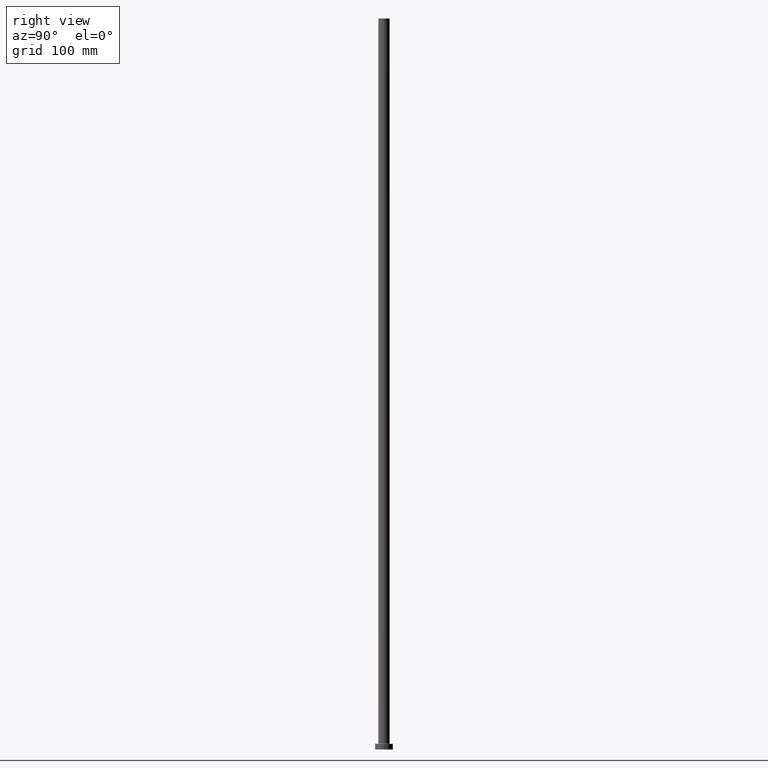
[diagram: clean part render]
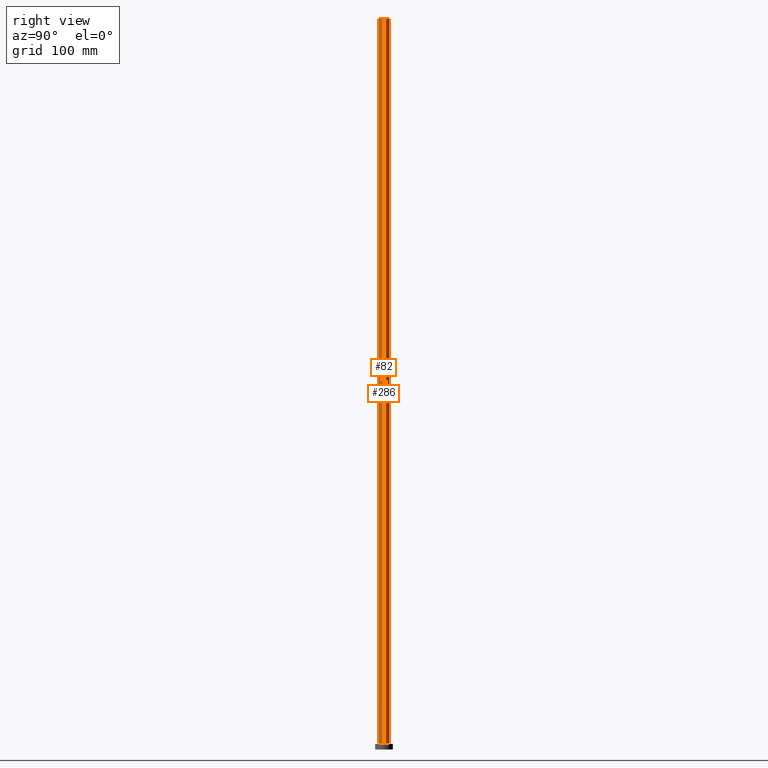
[diagram: same view with one multi-face feature highlighted, each face labeled with its STEP entity id]
A machine part, right view. The highlighted faces form ONE feature: a constant-radius fillet chain: 2 tangent blend faces with common blend radius 5 mm. The faces share edges in the B-rep.
Their STEP definitions:
[1] entity #286 (Cylinder):
#4 = CIRCLE ( 'NONE', #262, 5.000000000000000000 ) ;
#13 = AXIS2_PLACEMENT_3D ( 'NONE', #435, #360, #32 ) ;
#30 = DIRECTION ( 'NONE',  ( 0.000000000000000000, 0.000000000000000000, 1.000000000000000000 ) ) ;
#32 = DIRECTION ( 'NONE',  ( -1.000000000000000000, 0.000000000000000000, 0.000000000000000000 ) ) ;
#38 = ORIENTED_EDGE ( 'NONE', *, *, #337, .F. ) ;
#41 = CYLINDRICAL_SURFACE ( 'NONE', #13, 5.000000000000000000 ) ;
#48 = DIRECTION ( 'NONE',  ( 0.000000000000000000, 0.000000000000000000, 1.000000000000000000 ) ) ;
#62 = CARTESIAN_POINT ( 'NONE',  ( -5.000000000000000000, 0.000000000000000000, 650.0000000000000000 ) ) ;
#68 = CIRCLE ( 'NONE', #117, 5.000000000000000000 ) ;
#74 = VERTEX_POINT ( 'NONE', #158 ) ;
#86 = ORIENTED_EDGE ( 'NONE', *, *, #367, .T. ) ;
#99 = VECTOR ( 'NONE', #454, 1000.000000000000000 ) ;
#102 = EDGE_LOOP ( 'NONE', ( #38, #86, #318, #390 ) ) ;
#106 = CARTESIAN_POINT ( 'NONE',  ( 5.000000000000000000, 6.123233995736765296E-16, 5.499999999999949374 ) ) ;
#108 = CARTESIAN_POINT ( 'NONE',  ( 5.000000000000000000, 6.123233995736765296E-16, 650.0000000000000000 ) ) ;
#117 = AXIS2_PLACEMENT_3D ( 'NONE', #282, #48, #178 ) ;
#121 = EDGE_CURVE ( 'NONE', #354, #227, #68, .T. ) ;
#129 = DIRECTION ( 'NONE',  ( 1.000000000000000000, 0.000000000000000000, 0.000000000000000000 ) ) ;
#134 = FACE_OUTER_BOUND ( 'NONE', #102, .T. ) ;
#140 = VERTEX_POINT ( 'NONE', #146 ) ;
#146 = CARTESIAN_POINT ( 'NONE',  ( 5.000000000000000000, 6.123233995736765296E-16, 650.0000000000000000 ) ) ;
#158 = CARTESIAN_POINT ( 'NONE',  ( -5.000000000000000000, 0.000000000000000000, 650.0000000000000000 ) ) ;
#178 = DIRECTION ( 'NONE',  ( 1.000000000000000000, 0.000000000000000000, 0.000000000000000000 ) ) ;
#227 = VERTEX_POINT ( 'NONE', #314 ) ;
#241 = CARTESIAN_POINT ( 'NONE',  ( 0.000000000000000000, 0.000000000000000000, 650.0000000000000000 ) ) ;
#246 = LINE ( 'NONE', #108, #364 ) ;
#249 = DIRECTION ( 'NONE',  ( -0.000000000000000000, -0.000000000000000000, -1.000000000000000000 ) ) ;
#262 = AXIS2_PLACEMENT_3D ( 'NONE', #241, #30, #129 ) ;
#282 = CARTESIAN_POINT ( 'NONE',  ( 0.000000000000000000, 0.000000000000000000, 5.499999999999949374 ) ) ;
#286 = ADVANCED_FACE ( 'NONE', ( #134 ), #41, .T. ) ;
#295 = EDGE_CURVE ( 'NONE', #74, #227, #311, .T. ) ;
#311 = LINE ( 'NONE', #62, #99 ) ;
#314 = CARTESIAN_POINT ( 'NONE',  ( -5.000000000000000000, 0.000000000000000000, 5.499999999999949374 ) ) ;
#318 = ORIENTED_EDGE ( 'NONE', *, *, #121, .T. ) ;
#337 = EDGE_CURVE ( 'NONE', #140, #74, #4, .T. ) ;
#354 = VERTEX_POINT ( 'NONE', #106 ) ;
#360 = DIRECTION ( 'NONE',  ( -0.000000000000000000, -0.000000000000000000, -1.000000000000000000 ) ) ;
#364 = VECTOR ( 'NONE', #249, 1000.000000000000000 ) ;
#367 = EDGE_CURVE ( 'NONE', #140, #354, #246, .T. ) ;
#390 = ORIENTED_EDGE ( 'NONE', *, *, #295, .F. ) ;
#435 = CARTESIAN_POINT ( 'NONE',  ( 0.000000000000000000, 0.000000000000000000, 650.0000000000000000 ) ) ;
#454 = DIRECTION ( 'NONE',  ( -0.000000000000000000, -0.000000000000000000, -1.000000000000000000 ) ) ;
[2] entity #82 (Cylinder):
#24 = ORIENTED_EDGE ( 'NONE', *, *, #46, .T. ) ;
#35 = DIRECTION ( 'NONE',  ( 0.000000000000000000, 0.000000000000000000, 1.000000000000000000 ) ) ;
#46 = EDGE_CURVE ( 'NONE', #227, #354, #157, .T. ) ;
#51 = DIRECTION ( 'NONE',  ( 1.000000000000000000, 0.000000000000000000, 0.000000000000000000 ) ) ;
#62 = CARTESIAN_POINT ( 'NONE',  ( -5.000000000000000000, 0.000000000000000000, 650.0000000000000000 ) ) ;
#72 = DIRECTION ( 'NONE',  ( 1.000000000000000000, 0.000000000000000000, 0.000000000000000000 ) ) ;
#74 = VERTEX_POINT ( 'NONE', #158 ) ;
#82 = ADVANCED_FACE ( 'NONE', ( #203 ), #343, .T. ) ;
#93 = CARTESIAN_POINT ( 'NONE',  ( 0.000000000000000000, 0.000000000000000000, 5.499999999999949374 ) ) ;
#99 = VECTOR ( 'NONE', #454, 1000.000000000000000 ) ;
#106 = CARTESIAN_POINT ( 'NONE',  ( 5.000000000000000000, 6.123233995736765296E-16, 5.499999999999949374 ) ) ;
#108 = CARTESIAN_POINT ( 'NONE',  ( 5.000000000000000000, 6.123233995736765296E-16, 650.0000000000000000 ) ) ;
#140 = VERTEX_POINT ( 'NONE', #146 ) ;
#146 = CARTESIAN_POINT ( 'NONE',  ( 5.000000000000000000, 6.123233995736765296E-16, 650.0000000000000000 ) ) ;
#147 = ORIENTED_EDGE ( 'NONE', *, *, #295, .T. ) ;
#157 = CIRCLE ( 'NONE', #351, 5.000000000000000000 ) ;
#158 = CARTESIAN_POINT ( 'NONE',  ( -5.000000000000000000, 0.000000000000000000, 650.0000000000000000 ) ) ;
#173 = DIRECTION ( 'NONE',  ( -0.000000000000000000, -0.000000000000000000, -1.000000000000000000 ) ) ;
#203 = FACE_OUTER_BOUND ( 'NONE', #423, .T. ) ;
#224 = ORIENTED_EDGE ( 'NONE', *, *, #419, .F. ) ;
#227 = VERTEX_POINT ( 'NONE', #314 ) ;
#229 = DIRECTION ( 'NONE',  ( 0.000000000000000000, 0.000000000000000000, 1.000000000000000000 ) ) ;
#242 = ORIENTED_EDGE ( 'NONE', *, *, #367, .F. ) ;
#246 = LINE ( 'NONE', #108, #364 ) ;
#249 = DIRECTION ( 'NONE',  ( -0.000000000000000000, -0.000000000000000000, -1.000000000000000000 ) ) ;
#269 = AXIS2_PLACEMENT_3D ( 'NONE', #293, #173, #274 ) ;
#274 = DIRECTION ( 'NONE',  ( -1.000000000000000000, 0.000000000000000000, 0.000000000000000000 ) ) ;
#278 = CARTESIAN_POINT ( 'NONE',  ( 0.000000000000000000, 0.000000000000000000, 650.0000000000000000 ) ) ;
#285 = AXIS2_PLACEMENT_3D ( 'NONE', #278, #35, #72 ) ;
#293 = CARTESIAN_POINT ( 'NONE',  ( 0.000000000000000000, 0.000000000000000000, 650.0000000000000000 ) ) ;
#295 = EDGE_CURVE ( 'NONE', #74, #227, #311, .T. ) ;
#311 = LINE ( 'NONE', #62, #99 ) ;
#314 = CARTESIAN_POINT ( 'NONE',  ( -5.000000000000000000, 0.000000000000000000, 5.499999999999949374 ) ) ;
#317 = CIRCLE ( 'NONE', #285, 5.000000000000000000 ) ;
#343 = CYLINDRICAL_SURFACE ( 'NONE', #269, 5.000000000000000000 ) ;
#351 = AXIS2_PLACEMENT_3D ( 'NONE', #93, #229, #51 ) ;
#354 = VERTEX_POINT ( 'NONE', #106 ) ;
#364 = VECTOR ( 'NONE', #249, 1000.000000000000000 ) ;
#367 = EDGE_CURVE ( 'NONE', #140, #354, #246, .T. ) ;
#419 = EDGE_CURVE ( 'NONE', #74, #140, #317, .T. ) ;
#423 = EDGE_LOOP ( 'NONE', ( #242, #224, #147, #24 ) ) ;
#454 = DIRECTION ( 'NONE',  ( -0.000000000000000000, -0.000000000000000000, -1.000000000000000000 ) ) ;